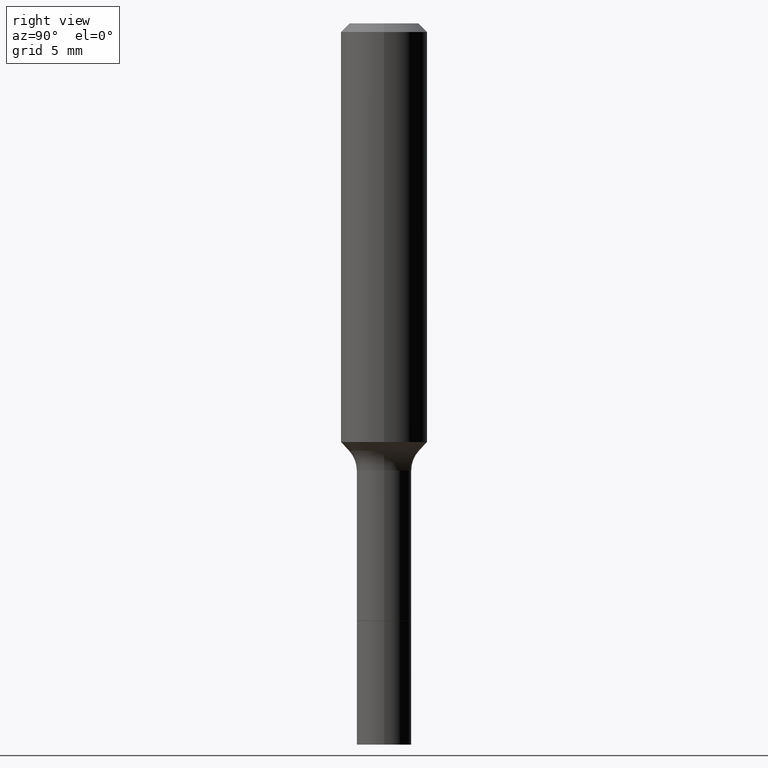
[diagram: clean part render]
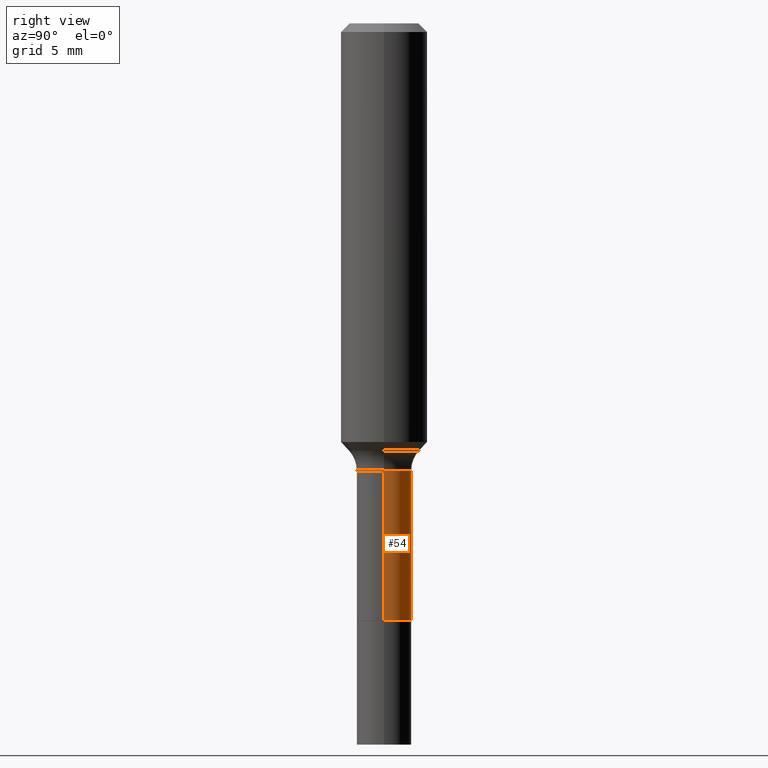
[diagram: same view with one face highlighted and labeled with its STEP entity id]
A machine part, right view. The second image highlights one B-rep face of the part: STEP entity #54.
In plain terms, the highlighted cylindrical surface (edge-blend (fillet) strip) has radius 1.8986 mm, axis along (-0, 0, 1).
Its self-contained STEP definition (entity closure, byte-faithful):
#6 = DIRECTION ( 'NONE',  ( -2.445468806185136597E-29, 3.491481338843145583E-15, 1.000000000000000000 ) ) ;
#8 = CARTESIAN_POINT ( 'NONE',  ( -0.07474999999999996925, 5.311306949806746704E-16, -3.676903979965540069E-30 ) ) ;
#15 = CARTESIAN_POINT ( 'NONE',  ( 0.000000000000000000, 0.000000000000000000, 0.000000000000000000 ) ) ;
#21 = VECTOR ( 'NONE', #441, 39.37007874015748143 ) ;
#40 = VERTEX_POINT ( 'NONE', #453 ) ;
#45 = DIRECTION ( 'NONE',  ( 1.000000000000000000, -6.982962677686263555E-15, 0.000000000000000000 ) ) ;
#46 = VERTEX_POINT ( 'NONE', #55 ) ;
#53 = VERTEX_POINT ( 'NONE', #256 ) ;
#54 = ADVANCED_FACE ( 'NONE', ( #459 ), #209, .T. ) ;
#55 = CARTESIAN_POINT ( 'NONE',  ( -0.07474999999999999700, -4.445103083205517975E-15, -1.630000000000000115 ) ) ;
#94 = DIRECTION ( 'NONE',  ( 1.000000000000000000, -6.982962677686266711E-15, 4.876176775795935793E-29 ) ) ;
#96 = ORIENTED_EDGE ( 'NONE', *, *, #391, .T. ) ;
#117 = DIRECTION ( 'NONE',  ( 1.000000000000000000, -6.982962677686271444E-15, 0.000000000000000000 ) ) ;
#122 = LINE ( 'NONE', #8, #21 ) ;
#133 = AXIS2_PLACEMENT_3D ( 'NONE', #393, #475, #117 ) ;
#161 = LINE ( 'NONE', #317, #283 ) ;
#164 = AXIS2_PLACEMENT_3D ( 'NONE', #192, #6, #45 ) ;
#192 = CARTESIAN_POINT ( 'NONE',  ( 2.984694677948959472E-29, -4.261352974058059028E-15, -1.220499999999999918 ) ) ;
#208 = AXIS2_PLACEMENT_3D ( 'NONE', #15, #455, #94 ) ;
#209 = CYLINDRICAL_SURFACE ( 'NONE', #208, 0.07474999999999996925 ) ;
#256 = CARTESIAN_POINT ( 'NONE',  ( 0.07474999999999994149, -4.783329434215106738E-15, -1.220499999999999918 ) ) ;
#278 = ORIENTED_EDGE ( 'NONE', *, *, #380, .F. ) ;
#283 = VECTOR ( 'NONE', #478, 39.37007874015748143 ) ;
#290 = VERTEX_POINT ( 'NONE', #482 ) ;
#292 = CIRCLE ( 'NONE', #133, 0.07474999999999999700 ) ;
#317 = CARTESIAN_POINT ( 'NONE',  ( 0.07474999999999996925, -5.219764601570482039E-16, 3.644942139907460492E-30 ) ) ;
#342 = CIRCLE ( 'NONE', #164, 0.07474999999999994149 ) ;
#352 = ORIENTED_EDGE ( 'NONE', *, *, #411, .T. ) ;
#366 = EDGE_LOOP ( 'NONE', ( #96, #352, #278, #491 ) ) ;
#380 = EDGE_CURVE ( 'NONE', #53, #290, #342, .T. ) ;
#391 = EDGE_CURVE ( 'NONE', #40, #46, #292, .T. ) ;
#393 = CARTESIAN_POINT ( 'NONE',  ( 3.986114154081773303E-29, -5.691114582314327248E-15, -1.630000000000000115 ) ) ;
#404 = EDGE_CURVE ( 'NONE', #40, #53, #161, .T. ) ;
#411 = EDGE_CURVE ( 'NONE', #46, #290, #122, .T. ) ;
#441 = DIRECTION ( 'NONE',  ( -2.445468806185136877E-29, 3.491481338843145188E-15, 1.000000000000000000 ) ) ;
#453 = CARTESIAN_POINT ( 'NONE',  ( 0.07474999999999999700, -6.213091042471375748E-15, -1.630000000000000115 ) ) ;
#455 = DIRECTION ( 'NONE',  ( -2.445468806185136597E-29, 3.491481338843145583E-15, 1.000000000000000000 ) ) ;
#459 = FACE_OUTER_BOUND ( 'NONE', #366, .T. ) ;
#475 = DIRECTION ( 'NONE',  ( -2.445468806185136597E-29, 3.491481338843145583E-15, 1.000000000000000000 ) ) ;
#478 = DIRECTION ( 'NONE',  ( -2.445468806185136877E-29, 3.491481338843145188E-15, 1.000000000000000000 ) ) ;
#482 = CARTESIAN_POINT ( 'NONE',  ( -0.07474999999999994149, -4.445103083205517975E-15, -1.220499999999999918 ) ) ;
#491 = ORIENTED_EDGE ( 'NONE', *, *, #404, .F. ) ;